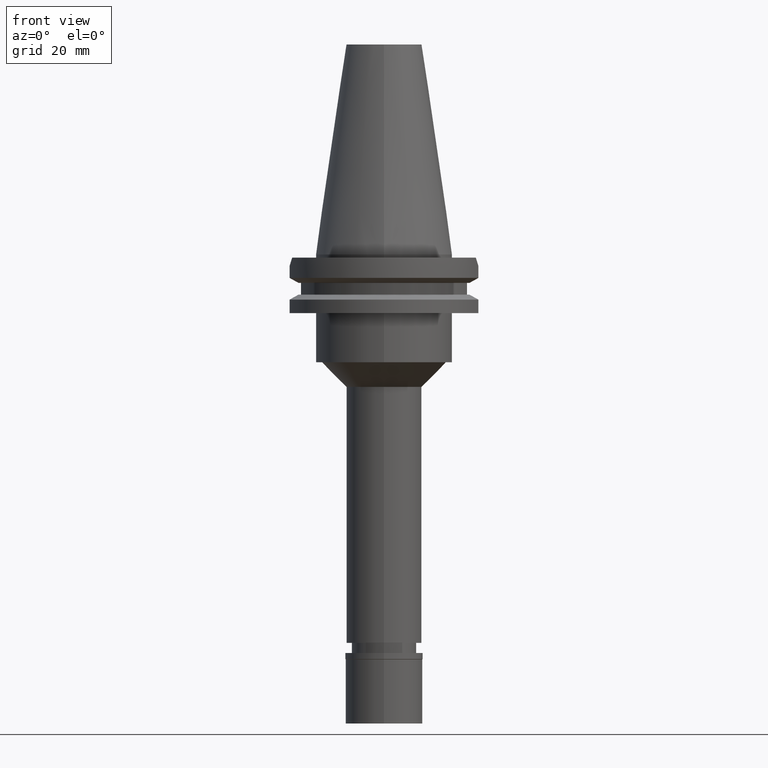
[diagram: clean part render]
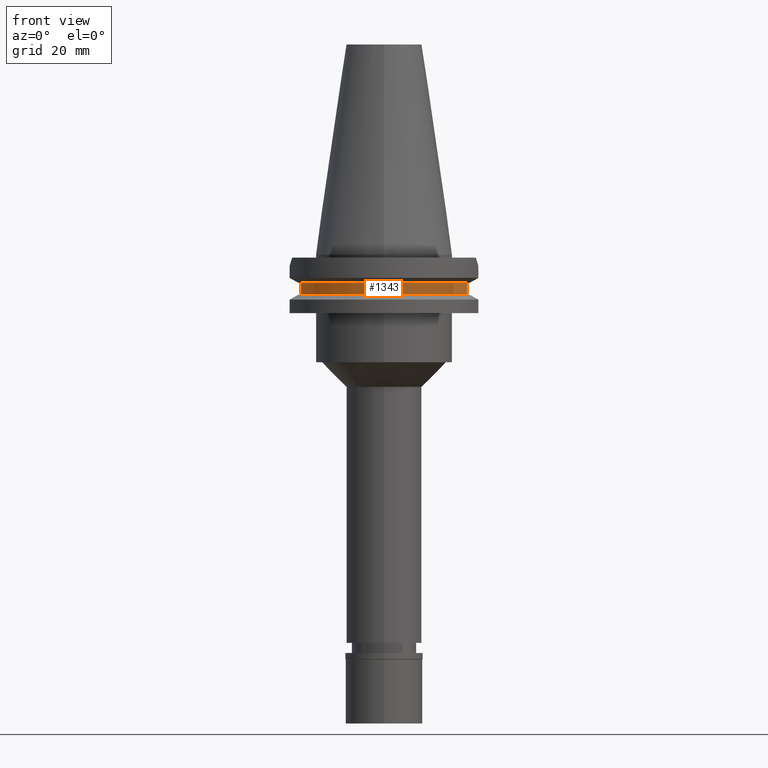
[diagram: same view with one face highlighted and labeled with its STEP entity id]
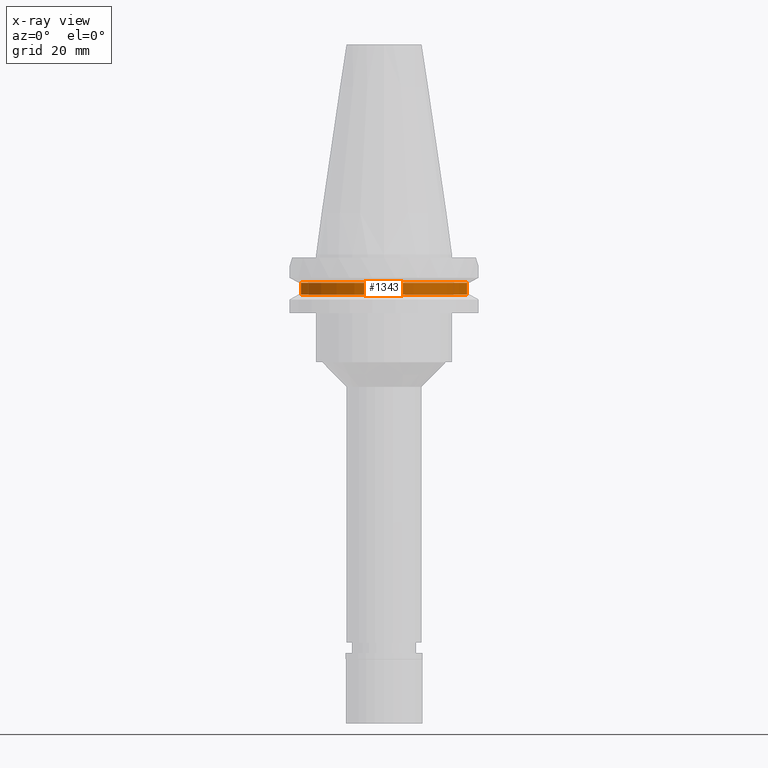
[diagram: x-ray of the same camera — body ghosted, the highlighted face saturated]
A machine part, front view. The second image highlights one B-rep face of the part: STEP entity #1343.
The next image is the same camera in x-ray: the body ghosted, the highlighted face saturated — about 0% of this face is hidden behind the body in this view.
In plain terms, the highlighted cylindrical surface (partial cylindrical patch) has radius 28.18 mm, axis along (0, 0, -1).
Its self-contained STEP definition (entity closure, byte-faithful):
#72 = DIRECTION ( 'NONE',  ( -0.9568350128907829877, -0.2906316536550950236, 0.0000000000000000000 ) ) ;
#336 = DIRECTION ( 'NONE',  ( 0.0000000000000000000, 0.0000000000000000000, 1.000000000000000000 ) ) ;
#390 = EDGE_CURVE ( 'NONE', #906, #723, #2423, .T. ) ;
#651 = CIRCLE ( 'NONE', #920, 28.17999999999999616 ) ;
#723 = VERTEX_POINT ( 'NONE', #2085 ) ;
#812 = DIRECTION ( 'NONE',  ( 0.0000000000000000000, -1.000000000000000000, 0.0000000000000000000 ) ) ;
#900 = EDGE_CURVE ( 'NONE', #906, #1364, #651, .T. ) ;
#906 = VERTEX_POINT ( 'NONE', #1606 ) ;
#920 = AXIS2_PLACEMENT_3D ( 'NONE', #3227, #1104, #72 ) ;
#1097 = EDGE_CURVE ( 'NONE', #2704, #1364, #2054, .T. ) ;
#1104 = DIRECTION ( 'NONE',  ( 0.0000000000000000000, 0.0000000000000000000, 1.000000000000000000 ) ) ;
#1138 = DIRECTION ( 'NONE',  ( 0.0000000000000000000, -1.000000000000000000, 0.0000000000000000000 ) ) ;
#1222 = EDGE_CURVE ( 'NONE', #2704, #723, #1708, .T. ) ;
#1343 = ADVANCED_FACE ( 'NONE', ( #1372 ), #1877, .T. ) ;
#1353 = CARTESIAN_POINT ( 'NONE',  ( 0.0000000000000000000, 0.0000000000000000000, 78.83249999999999602 ) ) ;
#1364 = VERTEX_POINT ( 'NONE', #2167 ) ;
#1372 = FACE_OUTER_BOUND ( 'NONE', #2031, .T. ) ;
#1563 = ORIENTED_EDGE ( 'NONE', *, *, #900, .T. ) ;
#1606 = CARTESIAN_POINT ( 'NONE',  ( -26.96361066326000255, -8.189999999999999503, -13.04749999999999943 ) ) ;
#1607 = DIRECTION ( 'NONE',  ( 0.0000000000000000000, 0.0000000000000000000, -1.000000000000000000 ) ) ;
#1708 = CIRCLE ( 'NONE', #2034, 28.17999999999999972 ) ;
#1738 = ORIENTED_EDGE ( 'NONE', *, *, #1097, .F. ) ;
#1757 = AXIS2_PLACEMENT_3D ( 'NONE', #1353, #1607, #1138 ) ;
#1810 = ORIENTED_EDGE ( 'NONE', *, *, #1222, .T. ) ;
#1814 = CARTESIAN_POINT ( 'NONE',  ( 26.96361066326000255, -8.189999999999999503, -9.207499999999999574 ) ) ;
#1877 = CYLINDRICAL_SURFACE ( 'NONE', #1757, 28.17999999999999972 ) ;
#2031 = EDGE_LOOP ( 'NONE', ( #1738, #1810, #3062, #1563 ) ) ;
#2034 = AXIS2_PLACEMENT_3D ( 'NONE', #2152, #2916, #812 ) ;
#2054 = LINE ( 'NONE', #1814, #3189 ) ;
#2085 = CARTESIAN_POINT ( 'NONE',  ( -26.96361066326000255, -8.189999999999999503, -9.207499999999999574 ) ) ;
#2152 = CARTESIAN_POINT ( 'NONE',  ( 0.0000000000000000000, 0.0000000000000000000, -9.207499999999999574 ) ) ;
#2167 = CARTESIAN_POINT ( 'NONE',  ( 26.96361066326000255, -8.189999999999999503, -13.04749999999999943 ) ) ;
#2308 = CARTESIAN_POINT ( 'NONE',  ( 26.96361066326000255, -8.189999999999999503, -9.207499999999999574 ) ) ;
#2319 = DIRECTION ( 'NONE',  ( 0.0000000000000000000, 0.0000000000000000000, -1.000000000000000000 ) ) ;
#2414 = VECTOR ( 'NONE', #336, 1000.000000000000000 ) ;
#2423 = LINE ( 'NONE', #2645, #2414 ) ;
#2645 = CARTESIAN_POINT ( 'NONE',  ( -26.96361066326000255, -8.189999999999999503, -13.04749999999999943 ) ) ;
#2704 = VERTEX_POINT ( 'NONE', #2308 ) ;
#2916 = DIRECTION ( 'NONE',  ( 0.0000000000000000000, 0.0000000000000000000, -1.000000000000000000 ) ) ;
#3062 = ORIENTED_EDGE ( 'NONE', *, *, #390, .F. ) ;
#3189 = VECTOR ( 'NONE', #2319, 1000.000000000000000 ) ;
#3227 = CARTESIAN_POINT ( 'NONE',  ( 0.0000000000000000000, 0.0000000000000000000, -13.04749999999999943 ) ) ;